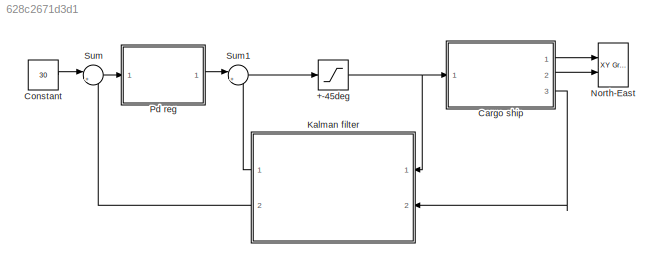
MODEL slx_628c2671d3d1
KIND model
CONFIG AbsTol = auto
CONFIG FixedStep = auto
CONFIG MaxStep = auto
CONFIG MinStep = auto
CONFIG RelTol = 1e-3
CONFIG SampleTimeConstraint = Unconstrained
CONFIG Solver = ode45
CONFIG SolverMode = Auto
CONFIG SolverName = ode45
CONFIG StartTime = 0.0
CONFIG StopTime = 800
BLOCK [Saturate] +-45deg
  InputPortMap = u0
  LowerLimit = -45
  Ports = [1, 1]
  UpperLimit = 45
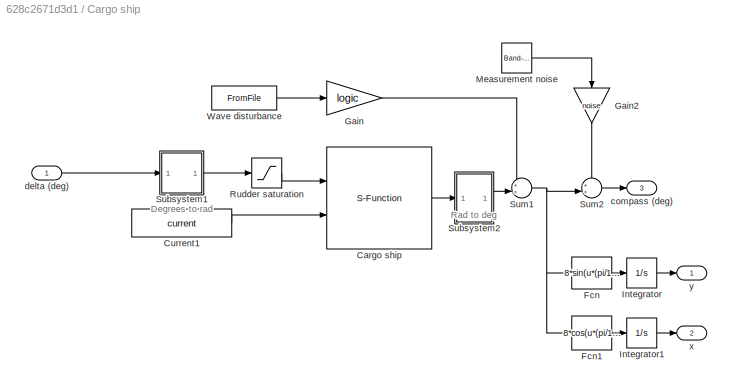
BLOCK [SubSystem] Cargo ship
  Ports = [1, 3]
  RequestExecContextInheritance = off
BLOCK [S-Function] Cargo ship/Cargo ship
  FunctionName = Cargoship
  Ports = [2, 1]
BLOCK [Constant] Cargo ship/Current1
  Value = current
BLOCK [Fcn] Cargo ship/Fcn
  Expr = 8*sin(u*(pi/180))
BLOCK [Fcn] Cargo ship/Fcn1
  Expr = 8*cos(u*(pi/180))
BLOCK [Gain] Cargo ship/Gain
  Gain = logic
BLOCK [Gain] Cargo ship/Gain2
  Gain = noise
BLOCK [Integrator] Cargo ship/Integrator
  Ports = [1, 1]
BLOCK [Integrator] Cargo ship/Integrator1
  Ports = [1, 1]
BLOCK [Reference] Cargo ship/Measurement noise  REF=simulink/Sources/Band-Limited
White Noise
  Cov = [0.001]
  Ports = [0, 1]
  SourceBlock = simulink/Sources/Band-Limited\nWhite Noise
  SourceType = Band-Limited White Noise.
  Ts = .5
  VectorParams1D = on
  seed = [23341]
BLOCK [Saturate] Cargo ship/Rudder saturation
  InputPortMap = u0
  LowerLimit = -45*(pi/180)
  Ports = [1, 1]
  UpperLimit = 45*(pi/180)
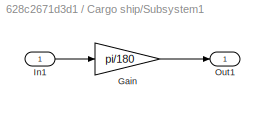
BLOCK [SubSystem] Cargo ship/Subsystem1
  Ports = [1, 1]
  RequestExecContextInheritance = off
BLOCK [Gain] Cargo ship/Subsystem1/Gain
  Gain = pi/180
BLOCK [Inport] Cargo ship/Subsystem1/In1
  IconDisplay = Port number
BLOCK [Outport] Cargo ship/Subsystem1/Out1
  IconDisplay = Port number
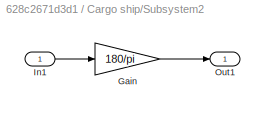
BLOCK [SubSystem] Cargo ship/Subsystem2
  Ports = [1, 1]
  RequestExecContextInheritance = off
BLOCK [Gain] Cargo ship/Subsystem2/Gain
  Gain = 180/pi
BLOCK [Inport] Cargo ship/Subsystem2/In1
  IconDisplay = Port number
BLOCK [Outport] Cargo ship/Subsystem2/Out1
  IconDisplay = Port number
BLOCK [Sum] Cargo ship/Sum1
  IconShape = round
  InputSameDT = off
  Inputs = ++|
  OutDataTypeStr = Inherit: Inherit via internal rule
  Ports = [2, 1]
BLOCK [Sum] Cargo ship/Sum2
  IconShape = round
  InputSameDT = off
  Inputs = ++|
  OutDataTypeStr = Inherit: Inherit via internal rule
  Ports = [2, 1]
BLOCK [FromFile] Cargo ship/Wave disturbance
  FileName = wave.mat
  SampleTime = 0
BLOCK [Outport] Cargo ship/compass (deg)
  IconDisplay = Port number
  Port = 3
BLOCK [Inport] Cargo ship/delta (deg)
  IconDisplay = Port number
BLOCK [Outport] Cargo ship/x
  IconDisplay = Port number
  Port = 2
BLOCK [Outport] Cargo ship/y
  IconDisplay = Port number
BLOCK [Constant] Constant
  Value = 30
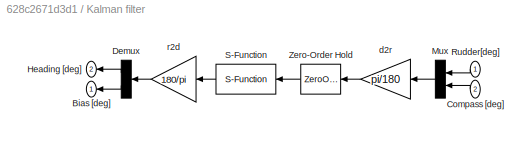
BLOCK [SubSystem] Kalman filter
  Ports = [2, 2]
  RequestExecContextInheritance = off
BLOCK [Outport] Kalman filter/Bias [deg]
  IconDisplay = Port number
BLOCK [Inport] Kalman filter/Compass [deg]
  IconDisplay = Port number
  Port = 2
BLOCK [Demux] Kalman filter/Demux
  DisplayOption = bar
  Outputs = 2
  Ports = [1, 2]
BLOCK [Outport] Kalman filter/Heading [deg]
  IconDisplay = Port number
  Port = 2
BLOCK [Mux] Kalman filter/Mux
  DisplayOption = bar
  Inputs = 2
  Ports = [2, 1]
BLOCK [Inport] Kalman filter/Rudder[deg]
  IconDisplay = Port number
BLOCK [S-Function] Kalman filter/S-Function
  FunctionName = DiscKal
  Parameters = data
  Ports = [1, 1]
  SFunctionModules = 'DiscKal'
BLOCK [ZeroOrderHold] Kalman filter/Zero-Order Hold
  SampleTime = T_s
BLOCK [Gain] Kalman filter/d2r
  Gain = pi/180
  OutDataTypeStr = Inherit: Inherit via internal rule
  ParamDataTypeStr = Inherit: Inherit via internal rule
  SaturateOnIntegerOverflow = off
BLOCK [Gain] Kalman filter/r2d
  Gain = 180/pi
  OutDataTypeStr = Inherit: Inherit via internal rule
  ParamDataTypeStr = Inherit: Inherit via internal rule
  SaturateOnIntegerOverflow = off
BLOCK [Reference] North-East  REF=simulink/Sinks/XY Graph
  Ports = [2]
  SourceBlock = simulink/Sinks/XY Graph
  SourceType = XY scope.
  st = -1
  xmax = 5000
  xmin = -5000
  ymax = 5000
  ymin = -5000
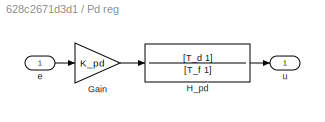
BLOCK [SubSystem] Pd reg 
  Ports = [1, 1]
  RequestExecContextInheritance = off
BLOCK [Gain] Pd reg /Gain
  Gain = K_pd
  OutDataTypeStr = Inherit: Inherit via internal rule
  ParamDataTypeStr = Inherit: Inherit via internal rule
  SaturateOnIntegerOverflow = off
BLOCK [TransferFcn] Pd reg /H_pd
  Denominator = [T_f 1]
  Numerator = [T_d 1]
BLOCK [Inport] Pd reg /e
  IconDisplay = Port number
BLOCK [Outport] Pd reg /u 
  IconDisplay = Port number
BLOCK [Sum] Sum
  IconShape = round
  InputSameDT = off
  Inputs = |+-
  OutDataTypeStr = Inherit: Inherit via internal rule
  Ports = [2, 1]
  SaturateOnIntegerOverflow = off
BLOCK [Sum] Sum1
  IconShape = round
  InputSameDT = off
  Inputs = |++
  OutDataTypeStr = Inherit: Inherit via internal rule
  Ports = [2, 1]
  SaturateOnIntegerOverflow = off
ANNOTATION Cargo ship: Degrees to rad
ANNOTATION Cargo ship: Rad to deg
NET +-45deg:1 -> Cargo ship:1, Kalman filter:1
LINE Cargo ship/Cargo ship:1 -> Cargo ship/Subsystem2:1
LINE Cargo ship/Current1:1 -> Cargo ship/Cargo ship:2
LINE Cargo ship/Fcn1:1 -> Cargo ship/Integrator1:1
LINE Cargo ship/Fcn:1 -> Cargo ship/Integrator:1
LINE Cargo ship/Gain2:1 -> Cargo ship/Sum2:1
LINE Cargo ship/Gain:1 -> Cargo ship/Sum1:1
LINE Cargo ship/Integrator1:1 -> Cargo ship/x:1
LINE Cargo ship/Integrator:1 -> Cargo ship/y:1
LINE Cargo ship/Measurement noise:1 -> Cargo ship/Gain2:1
LINE Cargo ship/Rudder saturation:1 -> Cargo ship/Cargo ship:1
LINE Cargo ship/Subsystem1/Gain:1 -> Cargo ship/Subsystem1/Out1:1
LINE Cargo ship/Subsystem1/In1:1 -> Cargo ship/Subsystem1/Gain:1
LINE Cargo ship/Subsystem1:1 -> Cargo ship/Rudder saturation:1
LINE Cargo ship/Subsystem2/Gain:1 -> Cargo ship/Subsystem2/Out1:1
LINE Cargo ship/Subsystem2/In1:1 -> Cargo ship/Subsystem2/Gain:1
LINE Cargo ship/Subsystem2:1 -> Cargo ship/Sum1:2
NET Cargo ship/Sum1:1 -> Cargo ship/Fcn1:1, Cargo ship/Fcn:1, Cargo ship/Sum2:2
LINE Cargo ship/Sum2:1 -> Cargo ship/compass (deg):1
LINE Cargo ship/Wave disturbance:1 -> Cargo ship/Gain:1
LINE Cargo ship/delta (deg):1 -> Cargo ship/Subsystem1:1
LINE Cargo ship:1 -> North-East:1
LINE Cargo ship:2 -> North-East:2
LINE Cargo ship:3 -> Kalman filter:2
LINE Constant:1 -> Sum:1
LINE Kalman filter/Compass [deg]:1 -> Kalman filter/Mux:2
LINE Kalman filter/Demux:1 -> Kalman filter/Heading [deg]:1
LINE Kalman filter/Demux:2 -> Kalman filter/Bias [deg]:1
LINE Kalman filter/Mux:1 -> Kalman filter/d2r:1
LINE Kalman filter/Rudder[deg]:1 -> Kalman filter/Mux:1
LINE Kalman filter/S-Function:1 -> Kalman filter/r2d:1
LINE Kalman filter/Zero-Order Hold:1 -> Kalman filter/S-Function:1
LINE Kalman filter/d2r:1 -> Kalman filter/Zero-Order Hold:1
LINE Kalman filter/r2d:1 -> Kalman filter/Demux:1
LINE Kalman filter:1 -> Sum1:2
LINE Kalman filter:2 -> Sum:2
LINE Pd reg /Gain:1 -> Pd reg /H_pd:1
LINE Pd reg /H_pd:1 -> Pd reg /u :1
LINE Pd reg /e:1 -> Pd reg /Gain:1
LINE Pd reg :1 -> Sum1:1
LINE Sum1:1 -> +-45deg:1
LINE Sum:1 -> Pd reg :1
note: NET lines group one-source signal fan-out (src -> all destinations, sorted); 1:1 wires keep LINE
